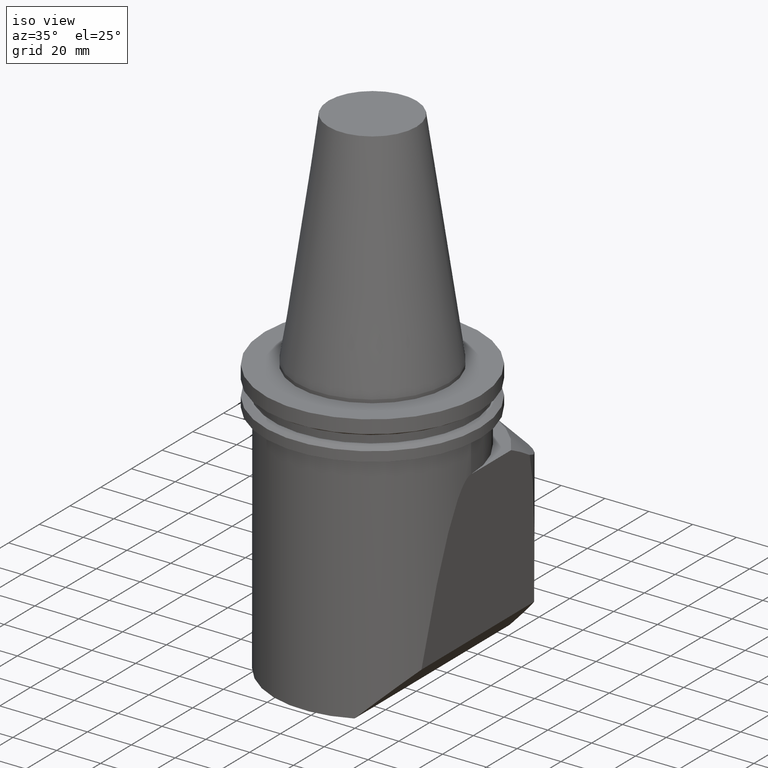
[diagram: clean part render]
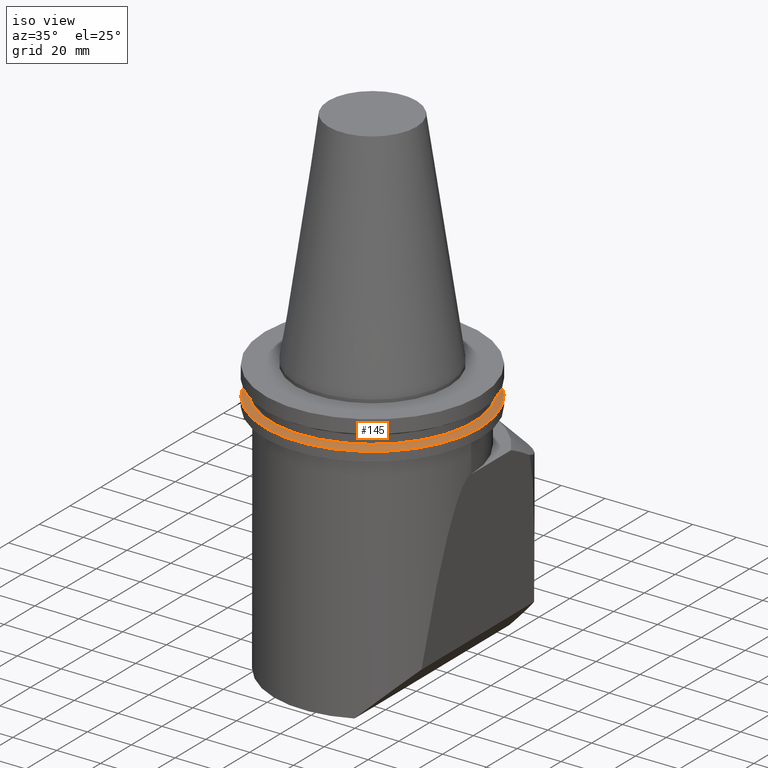
[diagram: same view with one face highlighted and labeled with its STEP entity id]
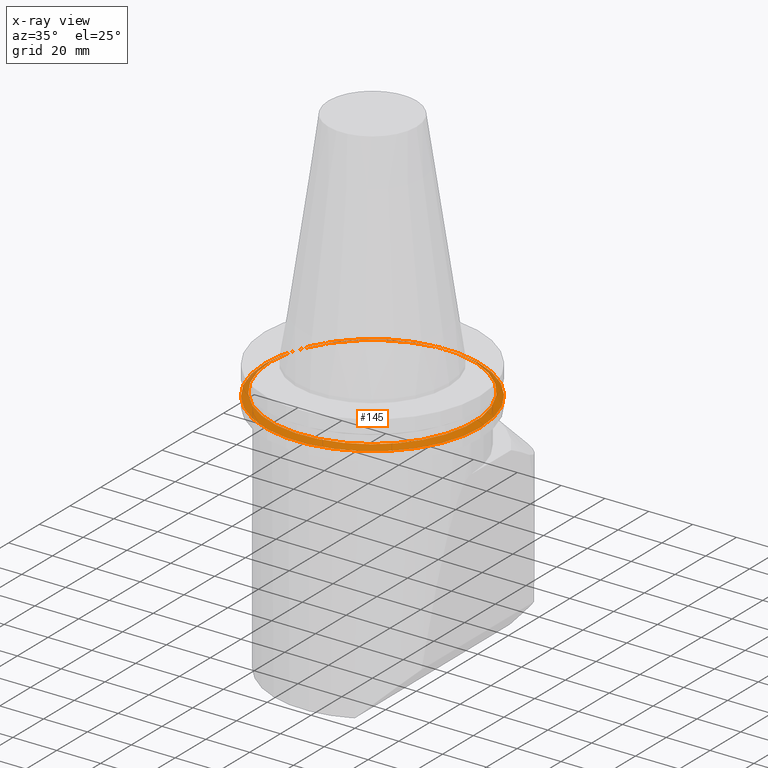
[diagram: x-ray of the same camera — body ghosted, the highlighted face saturated]
A machine part, iso view. The second image highlights one B-rep face of the part: STEP entity #145.
The next image is the same camera in x-ray: the body ghosted, the highlighted face saturated — about 7% of this face is hidden behind the body in this view.
In plain terms, the highlighted conical surface has half-angle 60 deg.
Its self-contained STEP definition (entity closure, byte-faithful):
#120=EDGE_CURVE('Unnamed[1]',#328,#328,#329,.T.);
#145=ADVANCED_FACE('Unnamed[1]',(#365,#366),#367,.T.);
#246=EDGE_CURVE('Unnamed[1]',#506,#506,#507,.T.);
#328=VERTEX_POINT('',#621);
#329=CIRCLE('',#622,49.2125);
#365=FACE_BOUND('',#674,.T.);
#366=FACE_BOUND('',#675,.T.);
#367=CONICAL_SURFACE('',#676,47.821518775,1.04719755103024);
#506=VERTEX_POINT('',#905);
#507=CIRCLE('',#906,46.43053755);
#621=CARTESIAN_POINT('',(-49.2125,8.14337052772293E-015,-14.64616677));
#622=AXIS2_PLACEMENT_3D('',#1001,#1002,#1003);
#674=EDGE_LOOP('',(#1035));
#675=EDGE_LOOP('',(#1036));
#676=AXIS2_PLACEMENT_3D('',#1037,#1038,#1039);
#905=CARTESIAN_POINT('',(-46.43053755,7.7306816659507E-015,-13.04));
#906=AXIS2_PLACEMENT_3D('',#1213,#1214,#1215);
#1001=CARTESIAN_POINT('',(1.79363812546588E-015,-8.96819062732943E-016,-14.64616677));
#1002=DIRECTION('',(1.22464679914735E-016,-6.12323399573677E-017,-1.0));
#1003=DIRECTION('',(-1.0,1.83697019872103E-016,-1.22464679914735E-016));
#1035=ORIENTED_EDGE('',*,*,#120,.F.);
#1036=ORIENTED_EDGE('',*,*,#246,.T.);
#1037=CARTESIAN_POINT('',(1.69528877577702E-015,-8.47644387888508E-016,-13.843083385));
#1038=DIRECTION('',(1.22464679914735E-016,-6.12323399573677E-017,-1.0));
#1039=DIRECTION('',(-1.0,1.83697019872103E-016,-1.22464679914735E-016));
#1213=CARTESIAN_POINT('',(1.59693942608815E-015,-7.98469713044074E-016,-13.04));
#1214=DIRECTION('',(1.22464679914735E-016,-6.12323399573677E-017,-1.0));
#1215=DIRECTION('',(-1.0,1.83697019872103E-016,-1.22464679914735E-016));